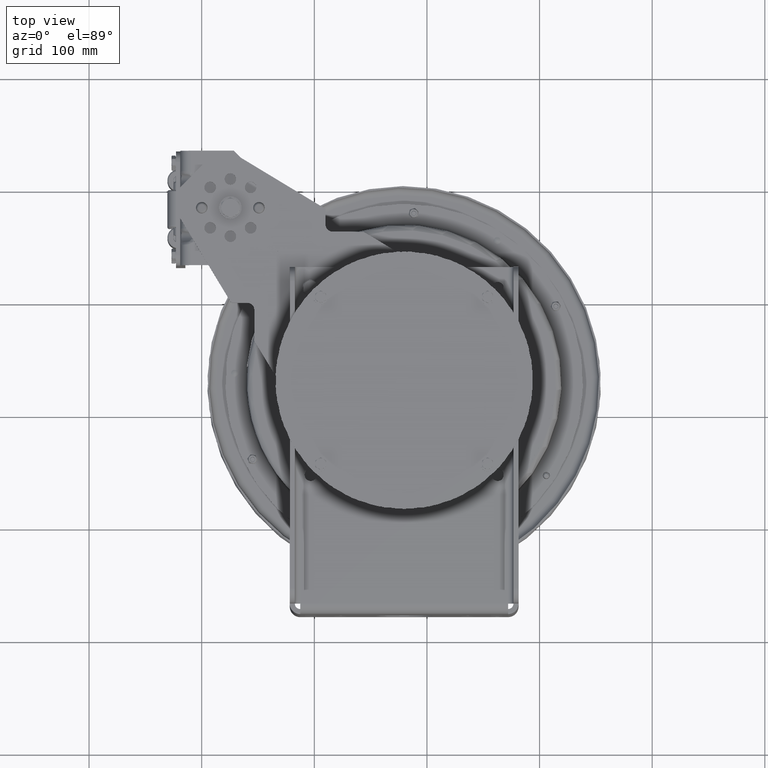
[diagram: clean part render]
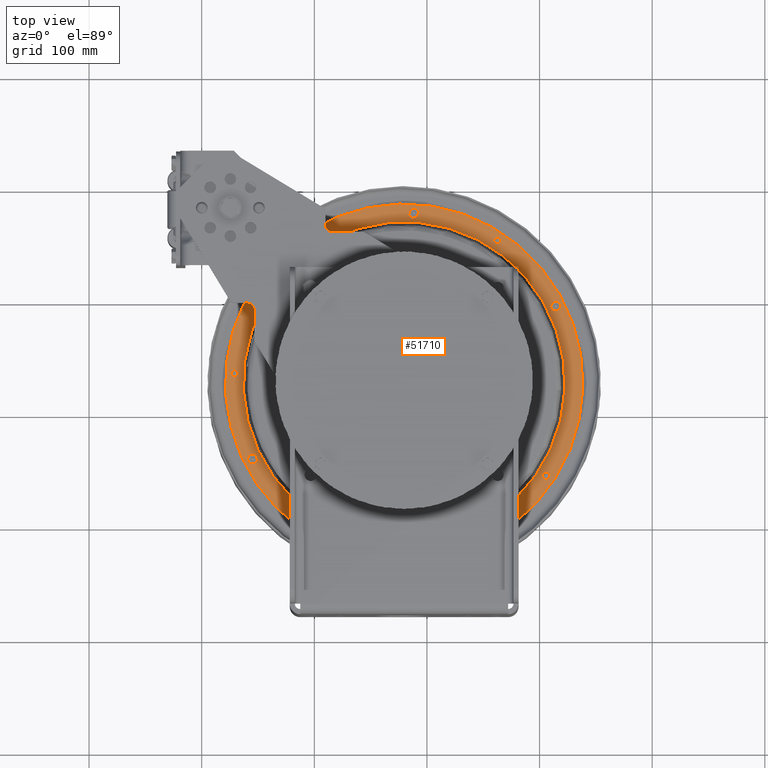
[diagram: same view with one face highlighted and labeled with its STEP entity id]
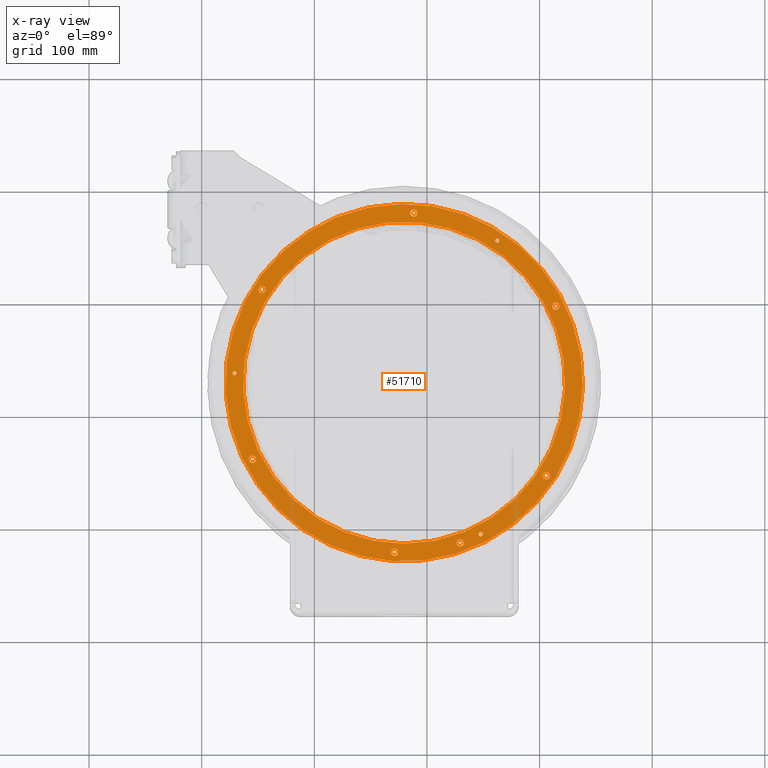
[diagram: x-ray of the same camera — body ghosted, the highlighted face saturated]
A machine part, top view. The second image highlights one B-rep face of the part: STEP entity #51710.
The next image is the same camera in x-ray: the body ghosted, the highlighted face saturated — about 1% of this face is hidden behind the body in this view.
In plain terms, the highlighted planar face has unit normal (0, 0, 1).
Its self-contained STEP definition (entity closure, byte-faithful):
#3453=FACE_BOUND('',#11982,.T.);
#3454=FACE_BOUND('',#11983,.T.);
#3455=FACE_BOUND('',#11984,.T.);
#3456=FACE_BOUND('',#11985,.T.);
#3457=FACE_BOUND('',#11986,.T.);
#3458=FACE_BOUND('',#11987,.T.);
#3459=FACE_BOUND('',#11988,.T.);
#3460=FACE_BOUND('',#11989,.T.);
#3461=FACE_BOUND('',#11990,.T.);
#3462=FACE_BOUND('',#11991,.T.);
#3463=FACE_BOUND('',#11992,.T.);
#4799=PLANE('',#57586);
#7735=FACE_OUTER_BOUND('',#11981,.T.);
#11981=EDGE_LOOP('',(#43138));
#11982=EDGE_LOOP('',(#43139));
#11983=EDGE_LOOP('',(#43140));
#11984=EDGE_LOOP('',(#43141));
#11985=EDGE_LOOP('',(#43142));
#11986=EDGE_LOOP('',(#43143));
#11987=EDGE_LOOP('',(#43144));
#11988=EDGE_LOOP('',(#43145));
#11989=EDGE_LOOP('',(#43146));
#11990=EDGE_LOOP('',(#43147));
#11991=EDGE_LOOP('',(#43148));
#11992=EDGE_LOOP('',(#43149));
#19858=CIRCLE('',#57535,0.073);
#19860=CIRCLE('',#57538,0.073);
#19862=CIRCLE('',#57541,0.073);
#19864=CIRCLE('',#57544,0.125);
#19866=CIRCLE('',#57547,0.125);
#19868=CIRCLE('',#57550,0.125);
#19870=CIRCLE('',#57553,0.125);
#19872=CIRCLE('',#57556,0.125);
#19874=CIRCLE('',#57559,0.125);
#19876=CIRCLE('',#57562,0.125);
#19891=CIRCLE('',#57585,5.625);
#19892=CIRCLE('',#57587,6.25);
#24213=VERTEX_POINT('',#96612);
#24215=VERTEX_POINT('',#96617);
#24217=VERTEX_POINT('',#96622);
#24219=VERTEX_POINT('',#96627);
#24221=VERTEX_POINT('',#96632);
#24223=VERTEX_POINT('',#96637);
#24225=VERTEX_POINT('',#96642);
#24227=VERTEX_POINT('',#96647);
#24229=VERTEX_POINT('',#96652);
#24231=VERTEX_POINT('',#96657);
#24246=VERTEX_POINT('',#96695);
#24247=VERTEX_POINT('',#96698);
#30623=EDGE_CURVE('',#24213,#24213,#19858,.T.);
#30625=EDGE_CURVE('',#24215,#24215,#19860,.T.);
#30627=EDGE_CURVE('',#24217,#24217,#19862,.T.);
#30629=EDGE_CURVE('',#24219,#24219,#19864,.T.);
#30631=EDGE_CURVE('',#24221,#24221,#19866,.T.);
#30633=EDGE_CURVE('',#24223,#24223,#19868,.T.);
#30635=EDGE_CURVE('',#24225,#24225,#19870,.T.);
#30637=EDGE_CURVE('',#24227,#24227,#19872,.T.);
#30639=EDGE_CURVE('',#24229,#24229,#19874,.T.);
#30641=EDGE_CURVE('',#24231,#24231,#19876,.T.);
#30656=EDGE_CURVE('',#24246,#24246,#19891,.T.);
#30657=EDGE_CURVE('',#24247,#24247,#19892,.T.);
#43138=ORIENTED_EDGE('',*,*,#30657,.F.);
#43139=ORIENTED_EDGE('',*,*,#30623,.T.);
#43140=ORIENTED_EDGE('',*,*,#30625,.T.);
#43141=ORIENTED_EDGE('',*,*,#30627,.T.);
#43142=ORIENTED_EDGE('',*,*,#30629,.T.);
#43143=ORIENTED_EDGE('',*,*,#30631,.T.);
#43144=ORIENTED_EDGE('',*,*,#30633,.T.);
#43145=ORIENTED_EDGE('',*,*,#30635,.T.);
#43146=ORIENTED_EDGE('',*,*,#30637,.T.);
#43147=ORIENTED_EDGE('',*,*,#30639,.T.);
#43148=ORIENTED_EDGE('',*,*,#30641,.T.);
#43149=ORIENTED_EDGE('',*,*,#30656,.T.);
#51710=ADVANCED_FACE('',(#7735,#3453,#3454,#3455,#3456,#3457,#3458,#3459,
#3460,#3461,#3462,#3463),#4799,.T.);
#57535=AXIS2_PLACEMENT_3D('',#96613,#71086,#71087);
#57538=AXIS2_PLACEMENT_3D('',#96618,#71092,#71093);
#57541=AXIS2_PLACEMENT_3D('',#96623,#71098,#71099);
#57544=AXIS2_PLACEMENT_3D('',#96628,#71104,#71105);
#57547=AXIS2_PLACEMENT_3D('',#96633,#71110,#71111);
#57550=AXIS2_PLACEMENT_3D('',#96638,#71116,#71117);
#57553=AXIS2_PLACEMENT_3D('',#96643,#71122,#71123);
#57556=AXIS2_PLACEMENT_3D('',#96648,#71128,#71129);
#57559=AXIS2_PLACEMENT_3D('',#96653,#71134,#71135);
#57562=AXIS2_PLACEMENT_3D('',#96658,#71140,#71141);
#57585=AXIS2_PLACEMENT_3D('',#96696,#71186,#71187);
#57586=AXIS2_PLACEMENT_3D('',#96697,#71188,#71189);
#57587=AXIS2_PLACEMENT_3D('',#96699,#71190,#71191);
#71086=DIRECTION('center_axis',(-9.27763481501238E-16,-2.69576830620716E-14,
-1.));
#71087=DIRECTION('ref_axis',(-0.652388761689236,-0.757884492268832,2.10360724090793E-14));
#71092=DIRECTION('center_axis',(-9.27763481501238E-16,-2.69576830620716E-14,
-1.));
#71093=DIRECTION('ref_axis',(0.982541604283697,-0.186042994631935,4.10372186569634E-15));
#71098=DIRECTION('center_axis',(-9.27763481501238E-16,-2.69576830620716E-14,
-1.));
#71099=DIRECTION('ref_axis',(-0.330152842594461,0.943927486900767,-2.51397942747756E-14));
#71104=DIRECTION('center_axis',(-9.27763481501238E-16,-2.69576830620716E-14,
-1.));
#71105=DIRECTION('ref_axis',(-0.982541604283698,0.186042994631935,-4.10372186569632E-15));
#71110=DIRECTION('center_axis',(-9.27763481501238E-16,-2.69576830620716E-14,
-1.));
#71111=DIRECTION('ref_axis',(-0.652388761689236,-0.757884492268832,2.10360724090793E-14));
#71116=DIRECTION('center_axis',(-9.27763481501238E-16,-2.69576830620716E-14,
-1.));
#71117=DIRECTION('ref_axis',(0.330152842594461,-0.943927486900767,2.51397942747756E-14));
#71122=DIRECTION('center_axis',(-9.27763481501238E-16,-2.69576830620716E-14,
-1.));
#71123=DIRECTION('ref_axis',(0.982541604283697,-0.186042994631935,4.10372186569634E-15));
#71128=DIRECTION('center_axis',(-9.27763481501238E-16,-2.69576830620716E-14,
-1.));
#71129=DIRECTION('ref_axis',(0.652388761689237,0.757884492268831,-2.10360724090793E-14));
#71134=DIRECTION('center_axis',(-9.27763481501238E-16,-2.69576830620716E-14,
-1.));
#71135=DIRECTION('ref_axis',(-0.330152842594461,0.943927486900767,-2.51397942747756E-14));
#71140=DIRECTION('center_axis',(-9.27763481501238E-16,-2.69576830620716E-14,
-1.));
#71141=DIRECTION('ref_axis',(-0.330152842594461,0.943927486900767,-2.51397942747756E-14));
#71186=DIRECTION('center_axis',(-9.27763481501238E-16,-2.69576830620716E-14,
-1.));
#71187=DIRECTION('ref_axis',(0.943927486900767,0.330152842594461,-9.77589714423525E-15));
#71188=DIRECTION('center_axis',(9.27763481501238E-16,2.69576830620716E-14,
1.));
#71189=DIRECTION('ref_axis',(0.33015284259446,-0.943927486900767,2.70716782324599E-14));
#71190=DIRECTION('center_axis',(-9.27763481501238E-16,-2.69576830620716E-14,
-1.));
#71191=DIRECTION('ref_axis',(0.943927486900767,0.330152842594461,-9.77589714423525E-15));
#96612=CARTESIAN_POINT('',(2.50417248552128,-1.7776012298905,-10.7218580459975));
#96613=CARTESIAN_POINT('Origin',(2.45654810591796,-1.83292679782612,-10.7218580459975));
#96617=CARTESIAN_POINT('',(-6.79635159349173,-6.45267704727673,-10.7218580459974));
#96618=CARTESIAN_POINT('Origin',(-6.72462605637902,-6.46625818588486,-10.7218580459974));
#96622=CARTESIAN_POINT('',(1.90264486848955,-12.1696292595177,-10.7218580459973));
#96623=CARTESIAN_POINT('Origin',(1.87854371098015,-12.100722552974,-10.7218580459973));
#96627=CARTESIAN_POINT('',(4.29334866844403,-10.0762840723022,-10.7218580459973));
#96628=CARTESIAN_POINT('Origin',(4.17053096790857,-10.0530286979733,-10.7218580459973));
#96632=CARTESIAN_POINT('',(4.58579055612985,-4.03017849322094,-10.7218580459975));
#96633=CARTESIAN_POINT('Origin',(4.5042419609187,-4.12491405475454,-10.7218580459975));
#96637=CARTESIAN_POINT('',(-0.504069525474474,-0.753863599813677,-10.7218580459976));
#96638=CARTESIAN_POINT('Origin',(-0.462800420150167,-0.871854535676272,
-10.7218580459976));
#96642=CARTESIAN_POINT('',(-5.88637149476463,-3.52365428548773,-10.7218580459975));
#96643=CARTESIAN_POINT('Origin',(-5.76355379422917,-3.54690965981672,-10.7218580459975));
#96647=CARTESIAN_POINT('',(-6.17881338245046,-9.56975986456905,-10.7218580459973));
#96648=CARTESIAN_POINT('Origin',(-6.0972647872393,-9.47502430303544,-10.7218580459973));
#96652=CARTESIAN_POINT('',(-1.08895330084613,-12.8460747579763,-10.7218580459972));
#96653=CARTESIAN_POINT('Origin',(-1.13022240617044,-12.7280838221137,-10.7218580459972));
#96657=CARTESIAN_POINT('',(1.20504019506861,-12.5225295682309,-10.7218580459973));
#96658=CARTESIAN_POINT('Origin',(1.16377108974431,-12.4045386323683,-10.7218580459973));
#96695=CARTESIAN_POINT('',(4.51308070065651,-4.94285943930115,-10.7218580459975));
#96696=CARTESIAN_POINT('Origin',(-0.796511413160303,-6.79996917889499,-10.7218580459974));
#96697=CARTESIAN_POINT('Origin',(4.808058040313,-4.83968667599038,-10.7218580459975));
#96698=CARTESIAN_POINT('',(5.10303537996949,-4.73651391267961,-10.7218580459975));
#96699=CARTESIAN_POINT('Origin',(-0.796511413160303,-6.79996917889499,-10.7218580459974));